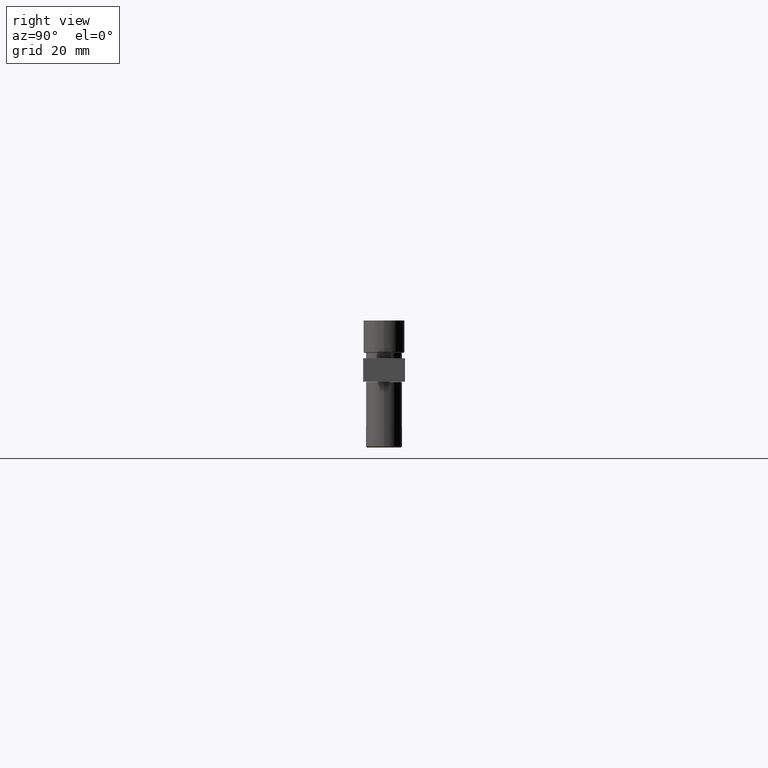
[diagram: clean part render]
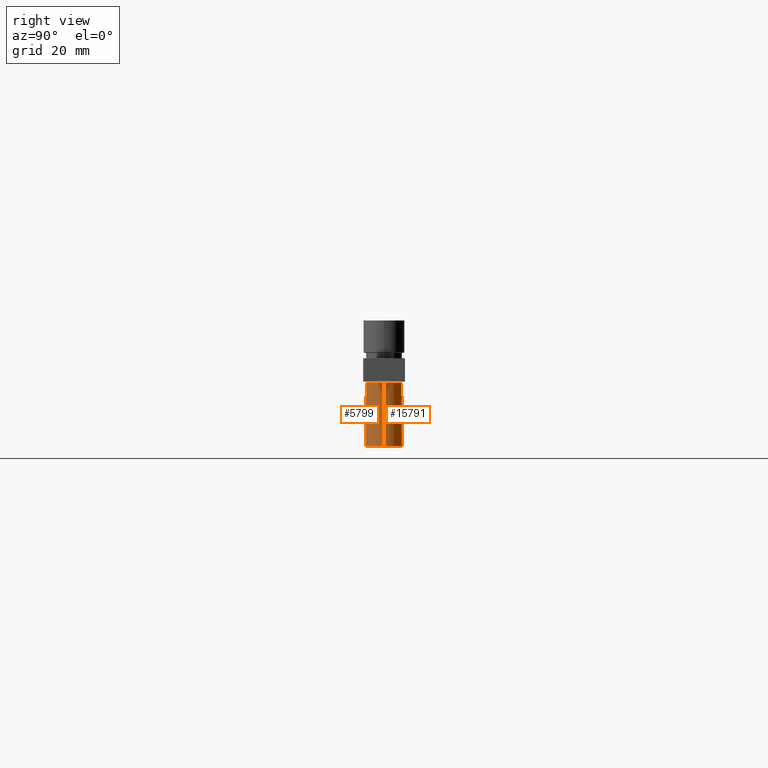
[diagram: same view with one multi-face feature highlighted, each face labeled with its STEP entity id]
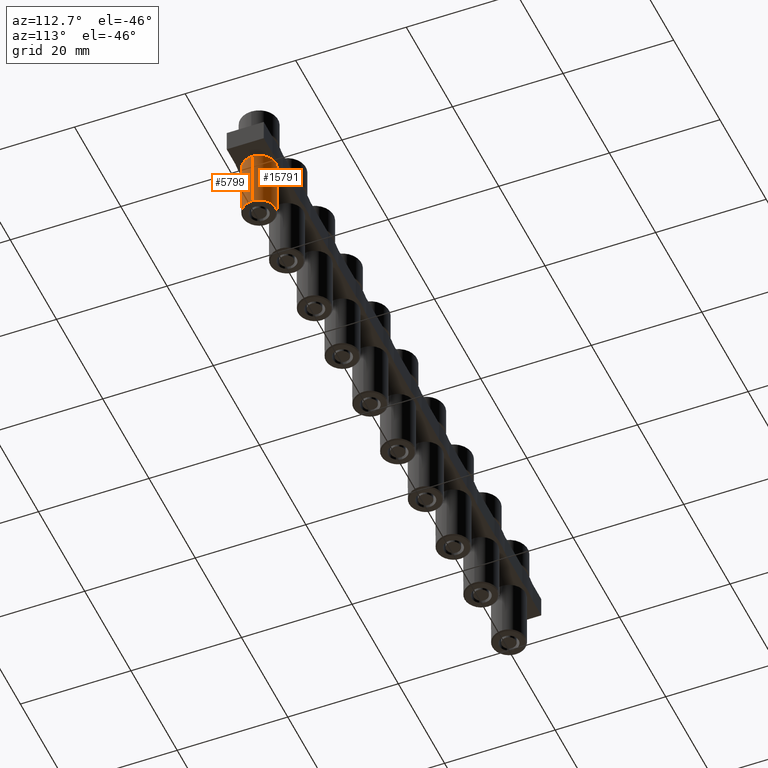
[diagram: same view with one multi-face feature highlighted, each face labeled with its STEP entity id]
A machine part, right view. The highlighted faces form ONE feature: a constant-radius fillet chain: 2 tangent blend faces with common blend radius 3 mm. The faces share edges in the B-rep.
A second angle (auxiliary view) of the same feature is appended — it is thin or edge-on in the first view.
Their STEP definitions:
[1] entity #5799 (Cylinder):
#1462 = CARTESIAN_POINT ( 'NONE',  ( 107.9383223934108700, -2.999999999911678600, -15.60000000008048600 ) ) ;
#1467 = CARTESIAN_POINT ( 'NONE',  ( 104.9383223934108700, 1.256819374707223200E-014, -15.60000000008048600 ) ) ;
#1501 = CARTESIAN_POINT ( 'NONE',  ( 104.9383223934187400, 1.256819374707223200E-014, -4.900000000077398000 ) ) ;
#1531 = CARTESIAN_POINT ( 'NONE',  ( 110.9383223934030100, 1.293558778681595600E-014, -4.900000000077398000 ) ) ;
#1549 = CARTESIAN_POINT ( 'NONE',  ( 110.9383223934108900, 1.293558778681643700E-014, -15.60000000008048600 ) ) ;
#2670 = VECTOR ( 'NONE', #16247, 1000.000000000000000 ) ;
#3046 = AXIS2_PLACEMENT_3D ( 'NONE', #16793, #16791, #16764 ) ;
#3546 = VERTEX_POINT ( 'NONE', #1467 ) ;
#3577 = VERTEX_POINT ( 'NONE', #1462 ) ;
#3654 = VERTEX_POINT ( 'NONE', #1531 ) ;
#3659 = VERTEX_POINT ( 'NONE', #1501 ) ;
#3691 = VERTEX_POINT ( 'NONE', #1549 ) ;
#4843 = EDGE_LOOP ( 'NONE', ( #5156, #5184, #5141, #5191, #5197 ) ) ;
#5141 = ORIENTED_EDGE ( 'NONE', *, *, #6055, .T. ) ;
#5156 = ORIENTED_EDGE ( 'NONE', *, *, #6143, .F. ) ;
#5184 = ORIENTED_EDGE ( 'NONE', *, *, #7149, .F. ) ;
#5191 = ORIENTED_EDGE ( 'NONE', *, *, #7200, .T. ) ;
#5197 = ORIENTED_EDGE ( 'NONE', *, *, #6110, .T. ) ;
#5799 = ADVANCED_FACE ( 'NONE', ( #16803 ), #16799, .T. ) ;
#6055 = EDGE_CURVE ( 'NONE', #3659, #3546, #16206, .T. ) ;
#6110 = EDGE_CURVE ( 'NONE', #3577, #3691, #9227, .T. ) ;
#6143 = EDGE_CURVE ( 'NONE', #3654, #3691, #15924, .T. ) ;
#7149 = EDGE_CURVE ( 'NONE', #3659, #3654, #16340, .T. ) ;
#7200 = EDGE_CURVE ( 'NONE', #3546, #3577, #16353, .T. ) ;
#9227 = CIRCLE ( 'NONE', #9246, 3.000000000000002700 ) ;
#9237 = VECTOR ( 'NONE', #15928, 1000.000000000000000 ) ;
#9246 = AXIS2_PLACEMENT_3D ( 'NONE', #15876, #15875, #15878 ) ;
#10032 = DIRECTION ( 'NONE',  ( -1.000000000000000000, 0.0000000000000000000, 0.0000000000000000000 ) ) ;
#10041 = DIRECTION ( 'NONE',  ( -0.0000000000000000000, -0.0000000000000000000, 1.000000000000000000 ) ) ;
#10053 = CARTESIAN_POINT ( 'NONE',  ( 107.9383223934108700, 1.256819374707223200E-014, -4.900000000077398000 ) ) ;
#10223 = DIRECTION ( 'NONE',  ( 0.0000000000000000000, 0.0000000000000000000, 1.000000000000000000 ) ) ;
#10227 = CARTESIAN_POINT ( 'NONE',  ( 107.9383223934108700, 1.256819374707223200E-014, -15.60000000008048600 ) ) ;
#10243 = DIRECTION ( 'NONE',  ( -1.000000000000000000, 0.0000000000000000000, 0.0000000000000000000 ) ) ;
#15875 = DIRECTION ( 'NONE',  ( 0.0000000000000000000, 0.0000000000000000000, 1.000000000000000000 ) ) ;
#15876 = CARTESIAN_POINT ( 'NONE',  ( 107.9383223934108700, 1.256819374707223200E-014, -15.60000000008048600 ) ) ;
#15878 = DIRECTION ( 'NONE',  ( -1.000000000000000000, 0.0000000000000000000, 0.0000000000000000000 ) ) ;
#15924 = LINE ( 'NONE', #15925, #9237 ) ;
#15925 = CARTESIAN_POINT ( 'NONE',  ( 110.9383223934108900, 1.293558778681643700E-014, -4.800000000080492800 ) ) ;
#15928 = DIRECTION ( 'NONE',  ( -0.0000000000000000000, -0.0000000000000000000, -1.000000000000000000 ) ) ;
#16206 = LINE ( 'NONE', #16242, #2670 ) ;
#16242 = CARTESIAN_POINT ( 'NONE',  ( 104.9383223934108700, 1.256819374707223200E-014, -4.800000000080492800 ) ) ;
#16247 = DIRECTION ( 'NONE',  ( -0.0000000000000000000, -0.0000000000000000000, -1.000000000000000000 ) ) ;
#16340 = CIRCLE ( 'NONE', #16355, 2.999999999992133800 ) ;
#16353 = CIRCLE ( 'NONE', #16380, 3.000000000000002700 ) ;
#16355 = AXIS2_PLACEMENT_3D ( 'NONE', #10053, #10041, #10032 ) ;
#16380 = AXIS2_PLACEMENT_3D ( 'NONE', #10227, #10223, #10243 ) ;
#16764 = DIRECTION ( 'NONE',  ( -1.000000000000000000, 0.0000000000000000000, 0.0000000000000000000 ) ) ;
#16791 = DIRECTION ( 'NONE',  ( -0.0000000000000000000, -0.0000000000000000000, -1.000000000000000000 ) ) ;
#16793 = CARTESIAN_POINT ( 'NONE',  ( 107.9383223934108700, 1.256819374707223200E-014, -4.800000000080492800 ) ) ;
#16799 = CYLINDRICAL_SURFACE ( 'NONE', #3046, 3.000000000000002700 ) ;
#16803 = FACE_OUTER_BOUND ( 'NONE', #4843, .T. ) ;
[2] entity #15791 (Cylinder):
#424 = ORIENTED_EDGE ( 'NONE', *, *, #6143, .T. ) ;
#426 = ORIENTED_EDGE ( 'NONE', *, *, #6108, .T. ) ;
#434 = ORIENTED_EDGE ( 'NONE', *, *, #6055, .F. ) ;
#455 = ORIENTED_EDGE ( 'NONE', *, *, #6075, .T. ) ;
#459 = ORIENTED_EDGE ( 'NONE', *, *, #6171, .F. ) ;
#1450 = CARTESIAN_POINT ( 'NONE',  ( 107.9383223934108700, 2.999999999911696900, -15.60000000008048600 ) ) ;
#1467 = CARTESIAN_POINT ( 'NONE',  ( 104.9383223934108700, 1.256819374707223200E-014, -15.60000000008048600 ) ) ;
#1501 = CARTESIAN_POINT ( 'NONE',  ( 104.9383223934187400, 1.256819374707223200E-014, -4.900000000077398000 ) ) ;
#1531 = CARTESIAN_POINT ( 'NONE',  ( 110.9383223934030100, 1.293558778681595600E-014, -4.900000000077398000 ) ) ;
#1549 = CARTESIAN_POINT ( 'NONE',  ( 110.9383223934108900, 1.293558778681643700E-014, -15.60000000008048600 ) ) ;
#2670 = VECTOR ( 'NONE', #16247, 1000.000000000000000 ) ;
#3072 = CIRCLE ( 'NONE', #3205, 3.000000000000002700 ) ;
#3205 = AXIS2_PLACEMENT_3D ( 'NONE', #16277, #16258, #16283 ) ;
#3546 = VERTEX_POINT ( 'NONE', #1467 ) ;
#3576 = VERTEX_POINT ( 'NONE', #1450 ) ;
#3654 = VERTEX_POINT ( 'NONE', #1531 ) ;
#3659 = VERTEX_POINT ( 'NONE', #1501 ) ;
#3691 = VERTEX_POINT ( 'NONE', #1549 ) ;
#4125 = DIRECTION ( 'NONE',  ( -0.0000000000000000000, -0.0000000000000000000, 1.000000000000000000 ) ) ;
#4127 = CARTESIAN_POINT ( 'NONE',  ( 107.9383223934108700, 1.256819374707223200E-014, -4.900000000077398000 ) ) ;
#4128 = DIRECTION ( 'NONE',  ( -1.000000000000000000, 0.0000000000000000000, 0.0000000000000000000 ) ) ;
#4400 = EDGE_LOOP ( 'NONE', ( #459, #424, #455, #426, #434 ) ) ;
#6055 = EDGE_CURVE ( 'NONE', #3659, #3546, #16206, .T. ) ;
#6075 = EDGE_CURVE ( 'NONE', #3691, #3576, #3072, .T. ) ;
#6108 = EDGE_CURVE ( 'NONE', #3576, #3546, #9221, .T. ) ;
#6143 = EDGE_CURVE ( 'NONE', #3654, #3691, #15924, .T. ) ;
#6171 = EDGE_CURVE ( 'NONE', #3654, #3659, #9302, .T. ) ;
#9221 = CIRCLE ( 'NONE', #9226, 3.000000000000002700 ) ;
#9226 = AXIS2_PLACEMENT_3D ( 'NONE', #15872, #15873, #15871 ) ;
#9237 = VECTOR ( 'NONE', #15928, 1000.000000000000000 ) ;
#9297 = AXIS2_PLACEMENT_3D ( 'NONE', #4127, #4125, #4128 ) ;
#9302 = CIRCLE ( 'NONE', #9297, 2.999999999992133800 ) ;
#14761 = DIRECTION ( 'NONE',  ( -1.000000000000000000, 0.0000000000000000000, 0.0000000000000000000 ) ) ;
#14790 = CARTESIAN_POINT ( 'NONE',  ( 107.9383223934108700, 1.256819374707223200E-014, -4.800000000080492800 ) ) ;
#14796 = CYLINDRICAL_SURFACE ( 'NONE', #15511, 3.000000000000002700 ) ;
#14799 = DIRECTION ( 'NONE',  ( -0.0000000000000000000, -0.0000000000000000000, -1.000000000000000000 ) ) ;
#14807 = FACE_OUTER_BOUND ( 'NONE', #4400, .T. ) ;
#15511 = AXIS2_PLACEMENT_3D ( 'NONE', #14790, #14799, #14761 ) ;
#15791 = ADVANCED_FACE ( 'NONE', ( #14807 ), #14796, .T. ) ;
#15871 = DIRECTION ( 'NONE',  ( -1.000000000000000000, 0.0000000000000000000, 0.0000000000000000000 ) ) ;
#15872 = CARTESIAN_POINT ( 'NONE',  ( 107.9383223934108700, 1.256819374707223200E-014, -15.60000000008048600 ) ) ;
#15873 = DIRECTION ( 'NONE',  ( 0.0000000000000000000, 0.0000000000000000000, 1.000000000000000000 ) ) ;
#15924 = LINE ( 'NONE', #15925, #9237 ) ;
#15925 = CARTESIAN_POINT ( 'NONE',  ( 110.9383223934108900, 1.293558778681643700E-014, -4.800000000080492800 ) ) ;
#15928 = DIRECTION ( 'NONE',  ( -0.0000000000000000000, -0.0000000000000000000, -1.000000000000000000 ) ) ;
#16206 = LINE ( 'NONE', #16242, #2670 ) ;
#16242 = CARTESIAN_POINT ( 'NONE',  ( 104.9383223934108700, 1.256819374707223200E-014, -4.800000000080492800 ) ) ;
#16247 = DIRECTION ( 'NONE',  ( -0.0000000000000000000, -0.0000000000000000000, -1.000000000000000000 ) ) ;
#16258 = DIRECTION ( 'NONE',  ( 0.0000000000000000000, 0.0000000000000000000, 1.000000000000000000 ) ) ;
#16277 = CARTESIAN_POINT ( 'NONE',  ( 107.9383223934108700, 1.256819374707223200E-014, -15.60000000008048600 ) ) ;
#16283 = DIRECTION ( 'NONE',  ( -1.000000000000000000, 0.0000000000000000000, 0.0000000000000000000 ) ) ;